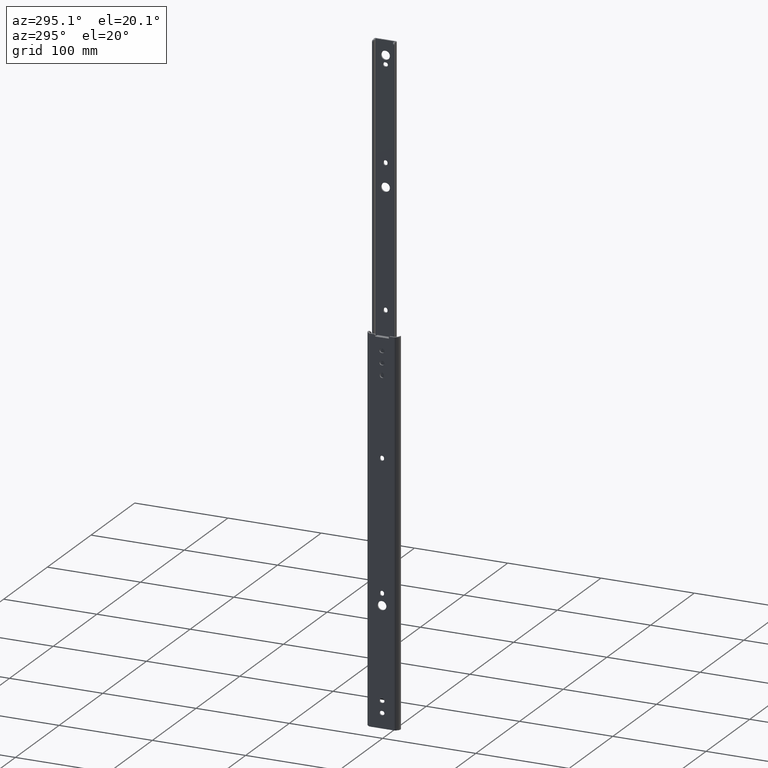
[diagram: clean part render]
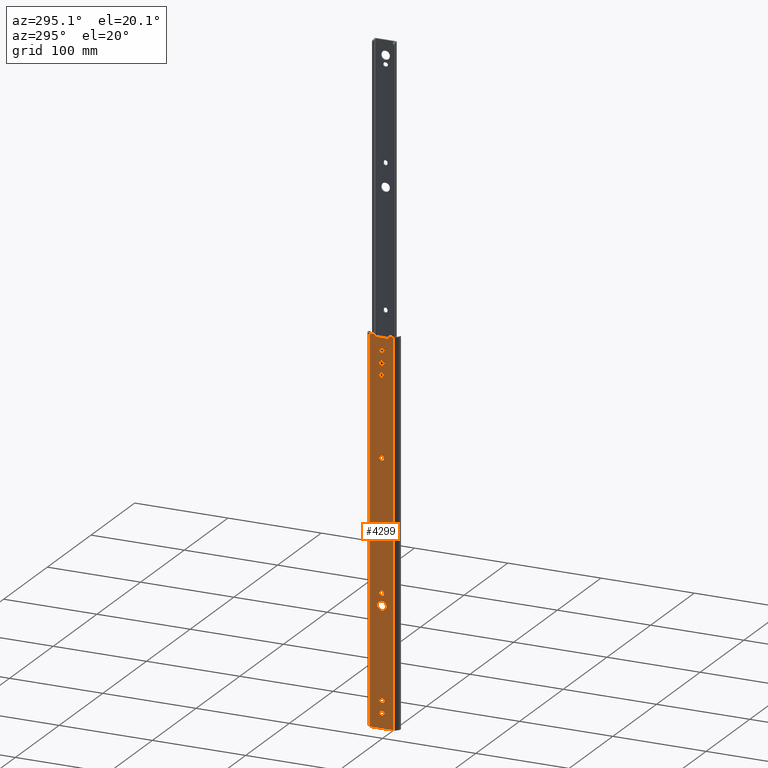
[diagram: same view with one face highlighted and labeled with its STEP entity id]
A machine part, auxiliary view. The second image highlights one B-rep face of the part: STEP entity #4299.
In plain terms, the highlighted planar face has unit normal (-1, 0, 0).
Its self-contained STEP definition (entity closure, byte-faithful):
#13 = EDGE_CURVE ( 'NONE', #1667, #1566, #989, .T. ) ;
#21 = DIRECTION ( 'NONE',  ( 0.0000000000000000000, 0.0000000000000000000, 1.000000000000000000 ) ) ;
#22 = DIRECTION ( 'NONE',  ( 0.0000000000000000000, 0.0000000000000000000, 1.000000000000000000 ) ) ;
#30 = CARTESIAN_POINT ( 'NONE',  ( -1.500000000000000000, 1.119185042408541492E-13, -40.89999999999997016 ) ) ;
#65 = CARTESIAN_POINT ( 'NONE',  ( -1.500000000000000000, 2.250000000000010658, -40.89999999999993463 ) ) ;
#80 = ORIENTED_EDGE ( 'NONE', *, *, #1971, .F. ) ;
#96 = CARTESIAN_POINT ( 'NONE',  ( -1.500000000000000000, -0.3999999999999604428, -392.7500000000000000 ) ) ;
#109 = AXIS2_PLACEMENT_3D ( 'NONE', #2656, #3086, #1935 ) ;
#114 = CARTESIAN_POINT ( 'NONE',  ( -1.500000000000000000, -7.100000000000000986E-15, -406.4000000000000341 ) ) ;
#130 = AXIS2_PLACEMENT_3D ( 'NONE', #1709, #3198, #1613 ) ;
#137 = AXIS2_PLACEMENT_3D ( 'NONE', #4686, #4310, #2770 ) ;
#148 = VERTEX_POINT ( 'NONE', #4198 ) ;
#162 = CARTESIAN_POINT ( 'NONE',  ( -1.500000000000000000, -7.100000000000000986E-15, -392.7500000000000000 ) ) ;
#184 = DIRECTION ( 'NONE',  ( 0.0000000000000000000, -1.000000000000000000, 0.0000000000000000000 ) ) ;
#200 = EDGE_CURVE ( 'NONE', #698, #2425, #2681, .T. ) ;
#208 = VECTOR ( 'NONE', #503, 1000.000000000000000 ) ;
#215 = DIRECTION ( 'NONE',  ( 0.0000000000000000000, -1.000000000000000000, 0.0000000000000000000 ) ) ;
#222 = CARTESIAN_POINT ( 'NONE',  ( -1.500000000000000000, 8.360230118118337828, 0.0000000000000000000 ) ) ;
#229 = VERTEX_POINT ( 'NONE', #3945 ) ;
#249 = VERTEX_POINT ( 'NONE', #2833 ) ;
#261 = EDGE_CURVE ( 'NONE', #4118, #1463, #3563, .T. ) ;
#281 = ORIENTED_EDGE ( 'NONE', *, *, #550, .F. ) ;
#312 = ORIENTED_EDGE ( 'NONE', *, *, #1143, .F. ) ;
#326 = DIRECTION ( 'NONE',  ( -1.000000000000000000, 0.0000000000000000000, 0.0000000000000000000 ) ) ;
#331 = LINE ( 'NONE', #4108, #699 ) ;
#332 = ORIENTED_EDGE ( 'NONE', *, *, #450, .F. ) ;
#341 = DIRECTION ( 'NONE',  ( -1.000000000000000000, 0.0000000000000000000, 0.0000000000000000000 ) ) ;
#343 = ORIENTED_EDGE ( 'NONE', *, *, #3849, .T. ) ;
#367 = CARTESIAN_POINT ( 'NONE',  ( -1.500000000000000000, -2.250000000107976739, -406.3999999999991246 ) ) ;
#379 = ORIENTED_EDGE ( 'NONE', *, *, #4591, .F. ) ;
#383 = DIRECTION ( 'NONE',  ( -1.000000000000000000, 0.0000000000000000000, 0.0000000000000000000 ) ) ;
#385 = VECTOR ( 'NONE', #1839, 1000.000000000000000 ) ;
#386 = CARTESIAN_POINT ( 'NONE',  ( -1.500000000000000000, 0.4000000000001954770, -375.5500000000000682 ) ) ;
#402 = VERTEX_POINT ( 'NONE', #2927 ) ;
#406 = LINE ( 'NONE', #1967, #1241 ) ;
#417 = DIRECTION ( 'NONE',  ( 0.0000000000000000000, 3.870601755773006472E-13, 1.000000000000000000 ) ) ;
#420 = DIRECTION ( 'NONE',  ( 0.0000000000000000000, -1.000000000000000000, 0.0000000000000000000 ) ) ;
#425 = VERTEX_POINT ( 'NONE', #4495 ) ;
#450 = EDGE_CURVE ( 'NONE', #4352, #2718, #2363, .T. ) ;
#455 = CARTESIAN_POINT ( 'NONE',  ( -1.500000000000000000, -0.3999999999999859224, -26.34999999999999787 ) ) ;
#494 = DIRECTION ( 'NONE',  ( 0.0000000000000000000, 0.0000000000000000000, 1.000000000000000000 ) ) ;
#495 = EDGE_LOOP ( 'NONE', ( #2086, #1899, #4333, #2869, #2987, #343, #2585, #4797, #1524, #3541, #3012 ) ) ;
#503 = DIRECTION ( 'NONE',  ( 0.0000000000000000000, 0.0000000000000000000, 1.000000000000000000 ) ) ;
#511 = DIRECTION ( 'NONE',  ( 0.0000000000000000000, 0.0000000000000000000, 1.000000000000000000 ) ) ;
#520 = CIRCLE ( 'NONE', #1803, 2.249999999999918732 ) ;
#521 = CARTESIAN_POINT ( 'NONE',  ( -1.500000000000000000, 2.250000000000663025, -267.1000000000000227 ) ) ;
#532 = CARTESIAN_POINT ( 'NONE',  ( -1.500000000000000000, -7.100000000000000986E-15, -30.84999999999998721 ) ) ;
#535 = DIRECTION ( 'NONE',  ( 0.0000000000000000000, 0.0000000000000000000, 1.000000000000000000 ) ) ;
#540 = DIRECTION ( 'NONE',  ( -1.000000000000000000, 0.0000000000000000000, 0.0000000000000000000 ) ) ;
#547 = VECTOR ( 'NONE', #2908, 1000.000000000000000 ) ;
#550 = EDGE_CURVE ( 'NONE', #1902, #1270, #2684, .T. ) ;
#587 = DIRECTION ( 'NONE',  ( -1.000000000000000000, 0.0000000000000000000, 0.0000000000000000000 ) ) ;
#588 = DIRECTION ( 'NONE',  ( -1.000000000000000000, 0.0000000000000000000, 0.0000000000000000000 ) ) ;
#619 = LINE ( 'NONE', #1776, #547 ) ;
#633 = DIRECTION ( 'NONE',  ( -1.000000000000000000, 0.0000000000000000000, 0.0000000000000000000 ) ) ;
#656 = CARTESIAN_POINT ( 'NONE',  ( -1.500000000000000000, -12.66450793488830051, -406.4000000000000341 ) ) ;
#657 = VERTEX_POINT ( 'NONE', #4975 ) ;
#698 = VERTEX_POINT ( 'NONE', #3344 ) ;
#699 = VECTOR ( 'NONE', #1869, 1000.000000000000227 ) ;
#701 = EDGE_CURVE ( 'NONE', #2718, #1401, #4958, .T. ) ;
#716 = ORIENTED_EDGE ( 'NONE', *, *, #4185, .F. ) ;
#732 = DIRECTION ( 'NONE',  ( 0.0000000000000000000, 0.0000000000000000000, 1.000000000000000000 ) ) ;
#751 = ORIENTED_EDGE ( 'NONE', *, *, #2110, .F. ) ;
#760 = FACE_BOUND ( 'NONE', #2052, .T. ) ;
#777 = CARTESIAN_POINT ( 'NONE',  ( -1.500000000000000000, 0.4000000000000089040, -15.90000000000000391 ) ) ;
#797 = ORIENTED_EDGE ( 'NONE', *, *, #4117, .F. ) ;
#824 = CARTESIAN_POINT ( 'NONE',  ( -1.500000000000000000, -7.100000000000000986E-15, -380.0500000000000114 ) ) ;
#839 = ORIENTED_EDGE ( 'NONE', *, *, #1842, .F. ) ;
#854 = CARTESIAN_POINT ( 'NONE',  ( -1.500000000000048850, -7.499999999999990230, -2.199999999999999734 ) ) ;
#868 = CIRCLE ( 'NONE', #137, 1.000000000000000000 ) ;
#873 = LINE ( 'NONE', #824, #3508 ) ;
#882 = LINE ( 'NONE', #3289, #4939 ) ;
#904 = CARTESIAN_POINT ( 'NONE',  ( -1.500000000000000000, -4.750000000006067147, -279.4000000000000341 ) ) ;
#921 = EDGE_CURVE ( 'NONE', #3783, #2823, #406, .T. ) ;
#948 = CIRCLE ( 'NONE', #3759, 2.249999999999974243 ) ;
#956 = DIRECTION ( 'NONE',  ( -1.000000000000000000, 0.0000000000000000000, 0.0000000000000000000 ) ) ;
#969 = LINE ( 'NONE', #162, #1493 ) ;
#988 = CARTESIAN_POINT ( 'NONE',  ( -1.500000000000000000, 2.649999999999873790, -390.5000000000000568 ) ) ;
#989 = CIRCLE ( 'NONE', #1001, 2.250000000000001776 ) ;
#997 = LINE ( 'NONE', #2527, #3528 ) ;
#1001 = AXIS2_PLACEMENT_3D ( 'NONE', #4024, #4799, #1756 ) ;
#1003 = ORIENTED_EDGE ( 'NONE', *, *, #2111, .F. ) ;
#1004 = DIRECTION ( 'NONE',  ( 0.0000000000000000000, 0.0000000000000000000, 1.000000000000000000 ) ) ;
#1010 = EDGE_CURVE ( 'NONE', #3391, #4339, #2573, .T. ) ;
#1013 = CARTESIAN_POINT ( 'NONE',  ( -1.500000000000000000, 2.650000000000084732, -28.60000000000000497 ) ) ;
#1020 = CARTESIAN_POINT ( 'NONE',  ( -1.500000000000000000, -0.3999999999999604428, -390.5000000000000568 ) ) ;
#1023 = AXIS2_PLACEMENT_3D ( 'NONE', #3502, #2293, #1560 ) ;
#1033 = VERTEX_POINT ( 'NONE', #2857 ) ;
#1065 = CARTESIAN_POINT ( 'NONE',  ( -1.500000000000000000, -0.3999999999999611644, -377.8000000000000114 ) ) ;
#1074 = EDGE_LOOP ( 'NONE', ( #3269, #4644 ) ) ;
#1088 = CARTESIAN_POINT ( 'NONE',  ( -1.500000000000000000, -0.3999999999999604428, -388.2500000000001705 ) ) ;
#1115 = DIRECTION ( 'NONE',  ( -1.000000000000000000, 0.0000000000000000000, 0.0000000000000000000 ) ) ;
#1139 = FACE_BOUND ( 'NONE', #1074, .T. ) ;
#1143 = EDGE_CURVE ( 'NONE', #402, #1667, #2978, .T. ) ;
#1151 = CARTESIAN_POINT ( 'NONE',  ( -1.500000000000000000, 2.250000000000010658, -406.4000000000000341 ) ) ;
#1170 = CARTESIAN_POINT ( 'NONE',  ( -1.499999999999999778, 8.360230118118336051, -1.000000000000000000 ) ) ;
#1188 = CARTESIAN_POINT ( 'NONE',  ( -1.499999999999999778, 7.360230118118336051, -1.000000000000000000 ) ) ;
#1192 = EDGE_LOOP ( 'NONE', ( #281, #1461, #2672, #1641, #3972 ) ) ;
#1211 = VERTEX_POINT ( 'NONE', #4742 ) ;
#1219 = VERTEX_POINT ( 'NONE', #65 ) ;
#1232 = VERTEX_POINT ( 'NONE', #1243 ) ;
#1241 = VECTOR ( 'NONE', #3501, 1000.000000000000000 ) ;
#1243 = CARTESIAN_POINT ( 'NONE',  ( -1.500000000000000000, 0.4000000000002092992, -380.0500000000000114 ) ) ;
#1245 = DIRECTION ( 'NONE',  ( 0.0000000000000000000, -1.000000000000000000, 0.0000000000000000000 ) ) ;
#1250 = DIRECTION ( 'NONE',  ( 0.0000000000000000000, 0.0000000000000000000, 1.000000000000000000 ) ) ;
#1270 = VERTEX_POINT ( 'NONE', #1642 ) ;
#1289 = CARTESIAN_POINT ( 'NONE',  ( -1.500000000000000000, 2.250000000000663025, -266.3000000000000682 ) ) ;
#1318 = VECTOR ( 'NONE', #4125, 1000.000000000000000 ) ;
#1356 = ORIENTED_EDGE ( 'NONE', *, *, #1601, .F. ) ;
#1366 = CARTESIAN_POINT ( 'NONE',  ( -1.500000000000000000, 0.4000000000000789591, -28.60000000000000497 ) ) ;
#1380 = CARTESIAN_POINT ( 'NONE',  ( -1.500000000000000000, 2.250000000000010658, -41.70000000000001705 ) ) ;
#1401 = VERTEX_POINT ( 'NONE', #3325 ) ;
#1440 = ORIENTED_EDGE ( 'NONE', *, *, #4362, .F. ) ;
#1461 = ORIENTED_EDGE ( 'NONE', *, *, #1874, .F. ) ;
#1463 = VERTEX_POINT ( 'NONE', #656 ) ;
#1483 = EDGE_LOOP ( 'NONE', ( #716, #2316, #3647, #4877, #3620 ) ) ;
#1489 = VECTOR ( 'NONE', #3929, 1000.000000000000000 ) ;
#1493 = VECTOR ( 'NONE', #184, 1000.000000000000000 ) ;
#1513 = FACE_BOUND ( 'NONE', #1192, .T. ) ;
#1517 = AXIS2_PLACEMENT_3D ( 'NONE', #777, #2738, #21 ) ;
#1524 = ORIENTED_EDGE ( 'NONE', *, *, #4427, .F. ) ;
#1547 = VERTEX_POINT ( 'NONE', #222 ) ;
#1560 = DIRECTION ( 'NONE',  ( 0.0000000000000000000, 0.0000000000000000000, 1.000000000000000000 ) ) ;
#1566 = VERTEX_POINT ( 'NONE', #4409 ) ;
#1601 = EDGE_CURVE ( 'NONE', #1401, #2032, #520, .T. ) ;
#1613 = DIRECTION ( 'NONE',  ( 0.0000000000000000000, 0.0000000000000000000, 1.000000000000000000 ) ) ;
#1630 = CARTESIAN_POINT ( 'NONE',  ( -1.500000000000199174, 12.66450793488827919, -406.4000000000000341 ) ) ;
#1641 = ORIENTED_EDGE ( 'NONE', *, *, #2459, .F. ) ;
#1642 = CARTESIAN_POINT ( 'NONE',  ( -1.500000000000000000, -0.3999999999999859224, -13.64999999999999858 ) ) ;
#1651 = DIRECTION ( 'NONE',  ( 1.571790391634308081E-14, -1.000000000000000000, -0.0000000000000000000 ) ) ;
#1657 = CARTESIAN_POINT ( 'NONE',  ( -1.499999999999951150, 7.500000000000008882, -2.199999999999997957 ) ) ;
#1659 = EDGE_CURVE ( 'NONE', #4256, #1547, #882, .T. ) ;
#1667 = VERTEX_POINT ( 'NONE', #3171 ) ;
#1709 = CARTESIAN_POINT ( 'NONE',  ( -1.500000000000000000, -6.091713553859936274E-12, -279.4000000000000341 ) ) ;
#1714 = EDGE_CURVE ( 'NONE', #2420, #3859, #2122, .T. ) ;
#1756 = DIRECTION ( 'NONE',  ( 0.0000000000000000000, 0.0000000000000000000, 1.000000000000000000 ) ) ;
#1776 = CARTESIAN_POINT ( 'NONE',  ( -1.500000000000000000, -2.250000000045854431, -406.3999999999997499 ) ) ;
#1800 = DIRECTION ( 'NONE',  ( 0.0000000000000000000, 0.0000000000000000000, 1.000000000000000000 ) ) ;
#1803 = AXIS2_PLACEMENT_3D ( 'NONE', #4449, #2509, #1004 ) ;
#1811 = AXIS2_PLACEMENT_3D ( 'NONE', #3990, #2096, #511 ) ;
#1812 = CARTESIAN_POINT ( 'NONE',  ( -1.500000000000000000, 2.250000000000663025, -406.4000000000000341 ) ) ;
#1815 = DIRECTION ( 'NONE',  ( 0.0000000000000000000, 1.000000000000000000, 0.0000000000000000000 ) ) ;
#1826 = DIRECTION ( 'NONE',  ( 0.0000000000000000000, 0.0000000000000000000, 1.000000000000000000 ) ) ;
#1832 = VECTOR ( 'NONE', #420, 1000.000000000000000 ) ;
#1839 = DIRECTION ( 'NONE',  ( 0.0000000000000000000, 0.0000000000000000000, -1.000000000000000000 ) ) ;
#1842 = EDGE_CURVE ( 'NONE', #4858, #1232, #2123, .T. ) ;
#1848 = EDGE_CURVE ( 'NONE', #1566, #1885, #2282, .T. ) ;
#1856 = CARTESIAN_POINT ( 'NONE',  ( -1.500000000000000000, -8.360230118118318288, -1.000000000000000000 ) ) ;
#1863 = CARTESIAN_POINT ( 'NONE',  ( -1.500000000000199174, 12.66450793488827919, -406.4000000000000341 ) ) ;
#1869 = DIRECTION ( 'NONE',  ( -7.914797957524653599E-16, -0.1218133261744156343, -0.9925530280878323008 ) ) ;
#1874 = EDGE_CURVE ( 'NONE', #229, #1902, #4653, .T. ) ;
#1885 = VERTEX_POINT ( 'NONE', #2309 ) ;
#1899 = ORIENTED_EDGE ( 'NONE', *, *, #200, .T. ) ;
#1901 = CARTESIAN_POINT ( 'NONE',  ( -1.500000000000047962, -7.367677090030486653, -1.121813326174416092 ) ) ;
#1902 = VERTEX_POINT ( 'NONE', #3138 ) ;
#1935 = DIRECTION ( 'NONE',  ( 0.0000000000000000000, 0.0000000000000000000, 1.000000000000000000 ) ) ;
#1936 = DIRECTION ( 'NONE',  ( 0.0000000000000000000, -1.000000000000000000, 0.0000000000000000000 ) ) ;
#1948 = FACE_BOUND ( 'NONE', #3381, .T. ) ;
#1967 = CARTESIAN_POINT ( 'NONE',  ( -1.500000000000000000, -7.100000000000000986E-15, -26.34999999999998366 ) ) ;
#1968 = CARTESIAN_POINT ( 'NONE',  ( -1.500000000000199174, 12.66450793488827919, 0.0000000000000000000 ) ) ;
#1971 = EDGE_CURVE ( 'NONE', #1232, #2394, #873, .T. ) ;
#1978 = CIRCLE ( 'NONE', #1811, 2.249999999999918732 ) ;
#1985 = CIRCLE ( 'NONE', #130, 4.749999999999976907 ) ;
#1988 = FACE_BOUND ( 'NONE', #2156, .T. ) ;
#2000 = ORIENTED_EDGE ( 'NONE', *, *, #2357, .F. ) ;
#2032 = VERTEX_POINT ( 'NONE', #988 ) ;
#2033 = DIRECTION ( 'NONE',  ( 0.0000000000000000000, 0.0000000000000000000, 1.000000000000000000 ) ) ;
#2044 = EDGE_LOOP ( 'NONE', ( #2000, #797, #3425, #2072 ) ) ;
#2049 = CARTESIAN_POINT ( 'NONE',  ( -1.500000000000000000, 6.648220411199013478E-13, -266.3000000000000682 ) ) ;
#2052 = EDGE_LOOP ( 'NONE', ( #1440, #751, #4759, #379 ) ) ;
#2053 = CARTESIAN_POINT ( 'NONE',  ( -1.500000000000000000, -0.3999999999999848677, -30.85000000000000853 ) ) ;
#2069 = CIRCLE ( 'NONE', #3117, 1.000000000000000000 ) ;
#2070 = CARTESIAN_POINT ( 'NONE',  ( -1.500000000000000000, -12.66450793488830051, -406.4000000000000341 ) ) ;
#2072 = ORIENTED_EDGE ( 'NONE', *, *, #4610, .F. ) ;
#2075 = CARTESIAN_POINT ( 'NONE',  ( -1.500000000000000000, 2.250000000000010658, -406.4000000000000341 ) ) ;
#2083 = EDGE_CURVE ( 'NONE', #249, #2539, #3579, .T. ) ;
#2086 = ORIENTED_EDGE ( 'NONE', *, *, #4674, .F. ) ;
#2089 = EDGE_CURVE ( 'NONE', #2032, #657, #1978, .T. ) ;
#2096 = DIRECTION ( 'NONE',  ( -1.000000000000000000, 0.0000000000000000000, 0.0000000000000000000 ) ) ;
#2110 = EDGE_CURVE ( 'NONE', #1219, #2618, #3658, .T. ) ;
#2111 = EDGE_CURVE ( 'NONE', #657, #4352, #969, .T. ) ;
#2122 = LINE ( 'NONE', #3664, #1489 ) ;
#2123 = CIRCLE ( 'NONE', #2697, 2.249999999999974243 ) ;
#2146 = AXIS2_PLACEMENT_3D ( 'NONE', #4728, #956, #2033 ) ;
#2156 = EDGE_LOOP ( 'NONE', ( #332, #1003, #4178, #1356, #3500 ) ) ;
#2218 = CIRCLE ( 'NONE', #3180, 2.249999999999974243 ) ;
#2225 = CIRCLE ( 'NONE', #2867, 2.249999999999974243 ) ;
#2237 = AXIS2_PLACEMENT_3D ( 'NONE', #3794, #341, #3419 ) ;
#2244 = DIRECTION ( 'NONE',  ( 0.0000000000000000000, 0.0000000000000000000, 1.000000000000000000 ) ) ;
#2265 = VERTEX_POINT ( 'NONE', #4569 ) ;
#2282 = LINE ( 'NONE', #367, #3260 ) ;
#2290 = ORIENTED_EDGE ( 'NONE', *, *, #4704, .F. ) ;
#2293 = DIRECTION ( 'NONE',  ( -1.000000000000000000, 0.0000000000000000000, 0.0000000000000000000 ) ) ;
#2296 = DIRECTION ( 'NONE',  ( 0.0000000000000000000, 0.0000000000000000000, 1.000000000000000000 ) ) ;
#2309 = CARTESIAN_POINT ( 'NONE',  ( -1.500000000000000000, -2.249999999999677591, -126.5999999999999659 ) ) ;
#2314 = LINE ( 'NONE', #3852, #1832 ) ;
#2316 = ORIENTED_EDGE ( 'NONE', *, *, #3946, .F. ) ;
#2327 = DIRECTION ( 'NONE',  ( -1.000000000000000000, 0.0000000000000000000, 0.0000000000000000000 ) ) ;
#2329 = DIRECTION ( 'NONE',  ( 0.0000000000000000000, 0.0000000000000000000, 1.000000000000000000 ) ) ;
#2357 = EDGE_CURVE ( 'NONE', #3341, #2842, #2218, .T. ) ;
#2363 = CIRCLE ( 'NONE', #4444, 2.249999999999918732 ) ;
#2394 = VERTEX_POINT ( 'NONE', #4267 ) ;
#2400 = AXIS2_PLACEMENT_3D ( 'NONE', #3921, #4697, #4723 ) ;
#2401 = CARTESIAN_POINT ( 'NONE',  ( -1.500000000000000000, 0.4000000000000089040, -15.90000000000000391 ) ) ;
#2410 = DIRECTION ( 'NONE',  ( -1.000000000000000000, 0.0000000000000000000, 0.0000000000000000000 ) ) ;
#2420 = VERTEX_POINT ( 'NONE', #3153 ) ;
#2425 = VERTEX_POINT ( 'NONE', #1901 ) ;
#2459 = EDGE_CURVE ( 'NONE', #2265, #425, #3663, .T. ) ;
#2473 = VECTOR ( 'NONE', #494, 1000.000000000000000 ) ;
#2488 = EDGE_CURVE ( 'NONE', #1463, #1033, #4012, .T. ) ;
#2493 = DIRECTION ( 'NONE',  ( 0.0000000000000000000, -1.000000000000000000, 0.0000000000000000000 ) ) ;
#2499 = CARTESIAN_POINT ( 'NONE',  ( -1.499999999999951150, 7.500000000000008882, -2.199999999999997957 ) ) ;
#2503 = CARTESIAN_POINT ( 'NONE',  ( -1.500000000000000000, 0.4000000000000222822, -30.84999999999998721 ) ) ;
#2509 = DIRECTION ( 'NONE',  ( -1.000000000000000000, 0.0000000000000000000, 0.0000000000000000000 ) ) ;
#2527 = CARTESIAN_POINT ( 'NONE',  ( -1.500000000000000000, -2.249999999999333422, -406.4000000000000341 ) ) ;
#2539 = VERTEX_POINT ( 'NONE', #1289 ) ;
#2573 = LINE ( 'NONE', #2499, #4777 ) ;
#2585 = ORIENTED_EDGE ( 'NONE', *, *, #3907, .T. ) ;
#2589 = DIRECTION ( 'NONE',  ( 0.0000000000000000000, 0.0000000000000000000, 1.000000000000000000 ) ) ;
#2602 = CARTESIAN_POINT ( 'NONE',  ( -1.500000000000000000, 4.749999999993884003, -279.4000000000000341 ) ) ;
#2613 = CARTESIAN_POINT ( 'NONE',  ( -1.500000000000000000, -0.3999999999999853673, -28.60000000000000497 ) ) ;
#2616 = AXIS2_PLACEMENT_3D ( 'NONE', #2401, #4740, #535 ) ;
#2618 = VERTEX_POINT ( 'NONE', #1380 ) ;
#2631 = VECTOR ( 'NONE', #3569, 1000.000000000000227 ) ;
#2654 = DIRECTION ( 'NONE',  ( 0.0000000000000000000, 0.0000000000000000000, -1.000000000000000000 ) ) ;
#2656 = CARTESIAN_POINT ( 'NONE',  ( -1.500000000000000000, -0.3999999999999853673, -15.90000000000000391 ) ) ;
#2671 = CARTESIAN_POINT ( 'NONE',  ( -1.500000000000000000, 0.4000000000000075162, -26.34999999999999787 ) ) ;
#2672 = ORIENTED_EDGE ( 'NONE', *, *, #4667, .F. ) ;
#2680 = EDGE_CURVE ( 'NONE', #1270, #2265, #3721, .T. ) ;
#2681 = CIRCLE ( 'NONE', #2918, 1.000000000000000000 ) ;
#2684 = CIRCLE ( 'NONE', #109, 2.250000000000005329 ) ;
#2697 = AXIS2_PLACEMENT_3D ( 'NONE', #3333, #4195, #1826 ) ;
#2718 = VERTEX_POINT ( 'NONE', #1088 ) ;
#2738 = DIRECTION ( 'NONE',  ( -1.000000000000000000, 0.0000000000000000000, 0.0000000000000000000 ) ) ;
#2770 = DIRECTION ( 'NONE',  ( 0.0000000000000000000, 0.0000000000000000000, 1.000000000000000000 ) ) ;
#2778 = CARTESIAN_POINT ( 'NONE',  ( -1.500000000000000000, -7.100000000000000986E-15, -18.14999999999999858 ) ) ;
#2788 = VECTOR ( 'NONE', #2493, 1000.000000000000000 ) ;
#2823 = VERTEX_POINT ( 'NONE', #2671 ) ;
#2827 = EDGE_CURVE ( 'NONE', #148, #1219, #3833, .T. ) ;
#2833 = CARTESIAN_POINT ( 'NONE',  ( -1.500000000000000000, -2.249999999999333422, -266.3000000000000682 ) ) ;
#2842 = VERTEX_POINT ( 'NONE', #3075 ) ;
#2857 = CARTESIAN_POINT ( 'NONE',  ( -1.500000000000000000, -12.66450793488830051, 0.0000000000000000000 ) ) ;
#2867 = AXIS2_PLACEMENT_3D ( 'NONE', #1065, #633, #2589 ) ;
#2869 = ORIENTED_EDGE ( 'NONE', *, *, #1010, .T. ) ;
#2875 = CIRCLE ( 'NONE', #4725, 2.250000000000005329 ) ;
#2889 = CARTESIAN_POINT ( 'NONE',  ( -1.499999999999952927, 7.230000000000010196, 0.0000000000000000000 ) ) ;
#2908 = DIRECTION ( 'NONE',  ( 0.0000000000000000000, 1.257674520083127336E-13, 1.000000000000000000 ) ) ;
#2918 = AXIS2_PLACEMENT_3D ( 'NONE', #1856, #4922, #22 ) ;
#2927 = CARTESIAN_POINT ( 'NONE',  ( -1.500000000000000000, 2.250000000000010658, -126.5999999999999375 ) ) ;
#2953 = CIRCLE ( 'NONE', #4483, 2.250000000000005329 ) ;
#2971 = EDGE_CURVE ( 'NONE', #4404, #4484, #1985, .T. ) ;
#2978 = LINE ( 'NONE', #1151, #4453 ) ;
#2987 = ORIENTED_EDGE ( 'NONE', *, *, #4363, .T. ) ;
#3012 = ORIENTED_EDGE ( 'NONE', *, *, #2488, .T. ) ;
#3016 = CARTESIAN_POINT ( 'NONE',  ( -1.500000000000000000, -7.100000000000000986E-15, -388.2500000000001705 ) ) ;
#3017 = EDGE_LOOP ( 'NONE', ( #4423, #312, #2290, #4191 ) ) ;
#3049 = FACE_BOUND ( 'NONE', #1483, .T. ) ;
#3072 = PLANE ( 'NONE',  #1023 ) ;
#3075 = CARTESIAN_POINT ( 'NONE',  ( -1.500000000000000000, -2.249999999999333422, -267.1000000000000227 ) ) ;
#3082 = DIRECTION ( 'NONE',  ( -1.000000000000000000, 0.0000000000000000000, 0.0000000000000000000 ) ) ;
#3086 = DIRECTION ( 'NONE',  ( -1.000000000000000000, 0.0000000000000000000, 0.0000000000000000000 ) ) ;
#3117 = AXIS2_PLACEMENT_3D ( 'NONE', #1170, #2327, #3865 ) ;
#3121 = CIRCLE ( 'NONE', #2146, 2.250000000000001776 ) ;
#3138 = CARTESIAN_POINT ( 'NONE',  ( -1.500000000000000000, -0.3999999999999848677, -18.15000000000000924 ) ) ;
#3144 = CARTESIAN_POINT ( 'NONE',  ( -1.500000000000000000, 0.4000000000000789591, -28.60000000000000497 ) ) ;
#3153 = CARTESIAN_POINT ( 'NONE',  ( -1.500000000000000000, -0.3999999999999619416, -375.5500000000000682 ) ) ;
#3171 = CARTESIAN_POINT ( 'NONE',  ( -1.500000000000000000, 2.250000000000010658, -127.4000000000000199 ) ) ;
#3180 = AXIS2_PLACEMENT_3D ( 'NONE', #4620, #3082, #2329 ) ;
#3198 = DIRECTION ( 'NONE',  ( -1.000000000000000000, 0.0000000000000000000, 0.0000000000000000000 ) ) ;
#3237 = ORIENTED_EDGE ( 'NONE', *, *, #3631, .F. ) ;
#3246 = VERTEX_POINT ( 'NONE', #1188 ) ;
#3260 = VECTOR ( 'NONE', #417, 1000.000000000000000 ) ;
#3269 = ORIENTED_EDGE ( 'NONE', *, *, #4791, .F. ) ;
#3285 = DIRECTION ( 'NONE',  ( 6.497481191993754238E-15, 1.000000000000000000, 1.156482317317871478E-16 ) ) ;
#3287 = DIRECTION ( 'NONE',  ( 0.0000000000000000000, 0.0000000000000000000, 1.000000000000000000 ) ) ;
#3289 = CARTESIAN_POINT ( 'NONE',  ( -1.500000000000000000, -7.100000000000000986E-15, 0.0000000000000000000 ) ) ;
#3325 = CARTESIAN_POINT ( 'NONE',  ( -1.500000000000000000, 0.4000000000001986411, -388.2500000000001705 ) ) ;
#3333 = CARTESIAN_POINT ( 'NONE',  ( -1.500000000000000000, 0.3999999999999542255, -377.8000000000000114 ) ) ;
#3341 = VERTEX_POINT ( 'NONE', #521 ) ;
#3344 = CARTESIAN_POINT ( 'NONE',  ( -1.500000000000000000, -8.360230118118318288, 0.0000000000000000000 ) ) ;
#3349 = CARTESIAN_POINT ( 'NONE',  ( -1.500000000000000000, -7.100000000000000986E-15, -13.64999999999999503 ) ) ;
#3381 = EDGE_LOOP ( 'NONE', ( #3237, #80, #839, #4545, #4510 ) ) ;
#3391 = VERTEX_POINT ( 'NONE', #854 ) ;
#3416 = EDGE_CURVE ( 'NONE', #3770, #4497, #4645, .T. ) ;
#3419 = DIRECTION ( 'NONE',  ( 0.0000000000000000000, 0.0000000000000000000, 1.000000000000000000 ) ) ;
#3425 = ORIENTED_EDGE ( 'NONE', *, *, #2083, .F. ) ;
#3432 = AXIS2_PLACEMENT_3D ( 'NONE', #30, #383, #2296 ) ;
#3454 = CIRCLE ( 'NONE', #2400, 4.749999999999976907 ) ;
#3460 = CARTESIAN_POINT ( 'NONE',  ( -1.500000000000000000, -2.249999999999987121, -41.70000000000001705 ) ) ;
#3500 = ORIENTED_EDGE ( 'NONE', *, *, #701, .F. ) ;
#3501 = DIRECTION ( 'NONE',  ( 0.0000000000000000000, 1.000000000000000000, 0.0000000000000000000 ) ) ;
#3502 = CARTESIAN_POINT ( 'NONE',  ( -1.500000000000000000, -7.100000000000000986E-15, -406.4000000000000341 ) ) ;
#3508 = VECTOR ( 'NONE', #1936, 1000.000000000000000 ) ;
#3528 = VECTOR ( 'NONE', #1800, 1000.000000000000000 ) ;
#3541 = ORIENTED_EDGE ( 'NONE', *, *, #261, .T. ) ;
#3563 = LINE ( 'NONE', #114, #3809 ) ;
#3569 = DIRECTION ( 'NONE',  ( -7.914797957524653599E-16, -0.1218133261744156343, 0.9925530280878323008 ) ) ;
#3579 = CIRCLE ( 'NONE', #4226, 2.249999999999974243 ) ;
#3613 = DIRECTION ( 'NONE',  ( 0.0000000000000000000, 0.0000000000000000000, -1.000000000000000000 ) ) ;
#3620 = ORIENTED_EDGE ( 'NONE', *, *, #921, .F. ) ;
#3631 = EDGE_CURVE ( 'NONE', #2394, #2420, #2225, .T. ) ;
#3647 = ORIENTED_EDGE ( 'NONE', *, *, #3416, .F. ) ;
#3658 = LINE ( 'NONE', #2075, #4783 ) ;
#3663 = CIRCLE ( 'NONE', #2616, 2.250000000000005329 ) ;
#3664 = CARTESIAN_POINT ( 'NONE',  ( -1.500000000000000000, -7.100000000000000986E-15, -375.5500000000000682 ) ) ;
#3666 = VECTOR ( 'NONE', #1815, 1000.000000000000000 ) ;
#3669 = AXIS2_PLACEMENT_3D ( 'NONE', #3144, #2410, #1250 ) ;
#3721 = LINE ( 'NONE', #3349, #3666 ) ;
#3746 = EDGE_CURVE ( 'NONE', #2425, #3391, #331, .T. ) ;
#3759 = AXIS2_PLACEMENT_3D ( 'NONE', #4558, #1115, #732 ) ;
#3770 = VERTEX_POINT ( 'NONE', #1013 ) ;
#3783 = VERTEX_POINT ( 'NONE', #455 ) ;
#3794 = CARTESIAN_POINT ( 'NONE',  ( -1.500000000000000000, 1.159543845470313509E-14, -126.5999999999999943 ) ) ;
#3809 = VECTOR ( 'NONE', #1651, 1000.000000000000000 ) ;
#3833 = CIRCLE ( 'NONE', #3432, 2.249999999999946709 ) ;
#3849 = EDGE_CURVE ( 'NONE', #1211, #3246, #868, .T. ) ;
#3852 = CARTESIAN_POINT ( 'NONE',  ( -1.500000000000000000, -7.100000000000000986E-15, 0.0000000000000000000 ) ) ;
#3859 = VERTEX_POINT ( 'NONE', #386 ) ;
#3865 = DIRECTION ( 'NONE',  ( 0.0000000000000000000, 0.0000000000000000000, 1.000000000000000000 ) ) ;
#3907 = EDGE_CURVE ( 'NONE', #3246, #1547, #2069, .T. ) ;
#3921 = CARTESIAN_POINT ( 'NONE',  ( -1.500000000000000000, -6.091713553859936274E-12, -279.4000000000000341 ) ) ;
#3929 = DIRECTION ( 'NONE',  ( 0.0000000000000000000, 1.000000000000000000, 0.0000000000000000000 ) ) ;
#3945 = CARTESIAN_POINT ( 'NONE',  ( -1.500000000000000000, 0.4000000000000221712, -18.14999999999999858 ) ) ;
#3946 = EDGE_CURVE ( 'NONE', #4497, #4844, #4807, .T. ) ;
#3950 = LINE ( 'NONE', #1630, #2473 ) ;
#3961 = DIRECTION ( 'NONE',  ( 0.0000000000000000000, 0.0000000000000000000, 1.000000000000000000 ) ) ;
#3972 = ORIENTED_EDGE ( 'NONE', *, *, #2680, .F. ) ;
#3990 = CARTESIAN_POINT ( 'NONE',  ( -1.500000000000000000, 0.3999999999999548916, -390.5000000000000568 ) ) ;
#3993 = CARTESIAN_POINT ( 'NONE',  ( -1.500000000000000000, 2.649999999999928413, -377.8000000000000114 ) ) ;
#4012 = LINE ( 'NONE', #2070, #208 ) ;
#4024 = CARTESIAN_POINT ( 'NONE',  ( -1.500000000000000000, 3.237824004933464225E-13, -127.4000000000000341 ) ) ;
#4108 = CARTESIAN_POINT ( 'NONE',  ( -1.500000000000047073, -7.229999999999990656, -1.770839271567072711E-15 ) ) ;
#4117 = EDGE_CURVE ( 'NONE', #2539, #3341, #4127, .T. ) ;
#4118 = VERTEX_POINT ( 'NONE', #1863 ) ;
#4125 = DIRECTION ( 'NONE',  ( 0.0000000000000000000, 1.000000000000000000, 0.0000000000000000000 ) ) ;
#4127 = LINE ( 'NONE', #1812, #385 ) ;
#4178 = ORIENTED_EDGE ( 'NONE', *, *, #2089, .F. ) ;
#4185 = EDGE_CURVE ( 'NONE', #4844, #3783, #2875, .T. ) ;
#4186 = EDGE_CURVE ( 'NONE', #3859, #4858, #948, .T. ) ;
#4191 = ORIENTED_EDGE ( 'NONE', *, *, #1848, .F. ) ;
#4195 = DIRECTION ( 'NONE',  ( -1.000000000000000000, 0.0000000000000000000, 0.0000000000000000000 ) ) ;
#4198 = CARTESIAN_POINT ( 'NONE',  ( -1.500000000000000000, -2.249999999999886757, -40.89999999999997726 ) ) ;
#4226 = AXIS2_PLACEMENT_3D ( 'NONE', #2049, #540, #3961 ) ;
#4256 = VERTEX_POINT ( 'NONE', #1968 ) ;
#4267 = CARTESIAN_POINT ( 'NONE',  ( -1.500000000000000000, -0.3999999999999619416, -380.0500000000000114 ) ) ;
#4299 = ADVANCED_FACE ( 'NONE', ( #1513, #3049, #760, #4587, #4662, #1948, #1988, #1139, #4681 ), #3072, .T. ) ;
#4310 = DIRECTION ( 'NONE',  ( -1.000000000000000000, 0.0000000000000000000, 0.0000000000000000000 ) ) ;
#4333 = ORIENTED_EDGE ( 'NONE', *, *, #3746, .T. ) ;
#4334 = VERTEX_POINT ( 'NONE', #3460 ) ;
#4339 = VERTEX_POINT ( 'NONE', #1657 ) ;
#4352 = VERTEX_POINT ( 'NONE', #96 ) ;
#4362 = EDGE_CURVE ( 'NONE', #2618, #4334, #3121, .T. ) ;
#4363 = EDGE_CURVE ( 'NONE', #4339, #1211, #4798, .T. ) ;
#4386 = VECTOR ( 'NONE', #1245, 1000.000000000000000 ) ;
#4404 = VERTEX_POINT ( 'NONE', #904 ) ;
#4409 = CARTESIAN_POINT ( 'NONE',  ( -1.500000000000000000, -2.249999999999987121, -127.4000000000000199 ) ) ;
#4411 = CIRCLE ( 'NONE', #1517, 2.250000000000005329 ) ;
#4423 = ORIENTED_EDGE ( 'NONE', *, *, #13, .F. ) ;
#4427 = EDGE_CURVE ( 'NONE', #4118, #4256, #3950, .T. ) ;
#4444 = AXIS2_PLACEMENT_3D ( 'NONE', #1020, #588, #3287 ) ;
#4449 = CARTESIAN_POINT ( 'NONE',  ( -1.500000000000000000, 0.3999999999999548916, -390.5000000000000568 ) ) ;
#4453 = VECTOR ( 'NONE', #2654, 1000.000000000000000 ) ;
#4483 = AXIS2_PLACEMENT_3D ( 'NONE', #1366, #587, #4895 ) ;
#4484 = VERTEX_POINT ( 'NONE', #2602 ) ;
#4495 = CARTESIAN_POINT ( 'NONE',  ( -1.500000000000000000, 2.650000000000014122, -15.90000000000000391 ) ) ;
#4497 = VERTEX_POINT ( 'NONE', #2503 ) ;
#4510 = ORIENTED_EDGE ( 'NONE', *, *, #1714, .F. ) ;
#4545 = ORIENTED_EDGE ( 'NONE', *, *, #4186, .F. ) ;
#4558 = CARTESIAN_POINT ( 'NONE',  ( -1.500000000000000000, 0.3999999999999542255, -377.8000000000000114 ) ) ;
#4569 = CARTESIAN_POINT ( 'NONE',  ( -1.500000000000000000, 0.4000000000000075162, -13.64999999999999858 ) ) ;
#4587 = FACE_BOUND ( 'NONE', #3017, .T. ) ;
#4591 = EDGE_CURVE ( 'NONE', #4334, #148, #619, .T. ) ;
#4610 = EDGE_CURVE ( 'NONE', #2842, #249, #997, .T. ) ;
#4620 = CARTESIAN_POINT ( 'NONE',  ( -1.500000000000000000, 6.649689987357988987E-13, -267.1000000000000227 ) ) ;
#4644 = ORIENTED_EDGE ( 'NONE', *, *, #2971, .F. ) ;
#4645 = CIRCLE ( 'NONE', #3669, 2.250000000000005329 ) ;
#4653 = LINE ( 'NONE', #2778, #4386 ) ;
#4662 = FACE_BOUND ( 'NONE', #2044, .T. ) ;
#4667 = EDGE_CURVE ( 'NONE', #425, #229, #4411, .T. ) ;
#4674 = EDGE_CURVE ( 'NONE', #698, #1033, #2314, .T. ) ;
#4681 = FACE_OUTER_BOUND ( 'NONE', #495, .T. ) ;
#4686 = CARTESIAN_POINT ( 'NONE',  ( -1.499999999999999778, 8.360230118118336051, -1.000000000000000000 ) ) ;
#4697 = DIRECTION ( 'NONE',  ( -1.000000000000000000, 0.0000000000000000000, 0.0000000000000000000 ) ) ;
#4704 = EDGE_CURVE ( 'NONE', #1885, #402, #4806, .T. ) ;
#4723 = DIRECTION ( 'NONE',  ( 0.0000000000000000000, 0.0000000000000000000, 1.000000000000000000 ) ) ;
#4725 = AXIS2_PLACEMENT_3D ( 'NONE', #2613, #326, #2244 ) ;
#4728 = CARTESIAN_POINT ( 'NONE',  ( -1.500000000000000000, 1.174239607060081853E-14, -41.70000000000001705 ) ) ;
#4740 = DIRECTION ( 'NONE',  ( -1.000000000000000000, 0.0000000000000000000, 0.0000000000000000000 ) ) ;
#4742 = CARTESIAN_POINT ( 'NONE',  ( -1.499999999999952038, 7.367677090030506193, -1.121813326174415426 ) ) ;
#4759 = ORIENTED_EDGE ( 'NONE', *, *, #2827, .F. ) ;
#4777 = VECTOR ( 'NONE', #3285, 1000.000000000000000 ) ;
#4783 = VECTOR ( 'NONE', #3613, 1000.000000000000000 ) ;
#4791 = EDGE_CURVE ( 'NONE', #4484, #4404, #3454, .T. ) ;
#4797 = ORIENTED_EDGE ( 'NONE', *, *, #1659, .F. ) ;
#4798 = LINE ( 'NONE', #2889, #2631 ) ;
#4799 = DIRECTION ( 'NONE',  ( -1.000000000000000000, 0.0000000000000000000, 0.0000000000000000000 ) ) ;
#4806 = CIRCLE ( 'NONE', #2237, 2.249999999999849454 ) ;
#4807 = LINE ( 'NONE', #532, #2788 ) ;
#4844 = VERTEX_POINT ( 'NONE', #2053 ) ;
#4858 = VERTEX_POINT ( 'NONE', #3993 ) ;
#4877 = ORIENTED_EDGE ( 'NONE', *, *, #4910, .F. ) ;
#4895 = DIRECTION ( 'NONE',  ( 0.0000000000000000000, 0.0000000000000000000, 1.000000000000000000 ) ) ;
#4910 = EDGE_CURVE ( 'NONE', #2823, #3770, #2953, .T. ) ;
#4922 = DIRECTION ( 'NONE',  ( -1.000000000000000000, 0.0000000000000000000, 0.0000000000000000000 ) ) ;
#4939 = VECTOR ( 'NONE', #215, 1000.000000000000000 ) ;
#4958 = LINE ( 'NONE', #3016, #1318 ) ;
#4975 = CARTESIAN_POINT ( 'NONE',  ( -1.500000000000000000, 0.4000000000002120193, -392.7500000000000000 ) ) ;